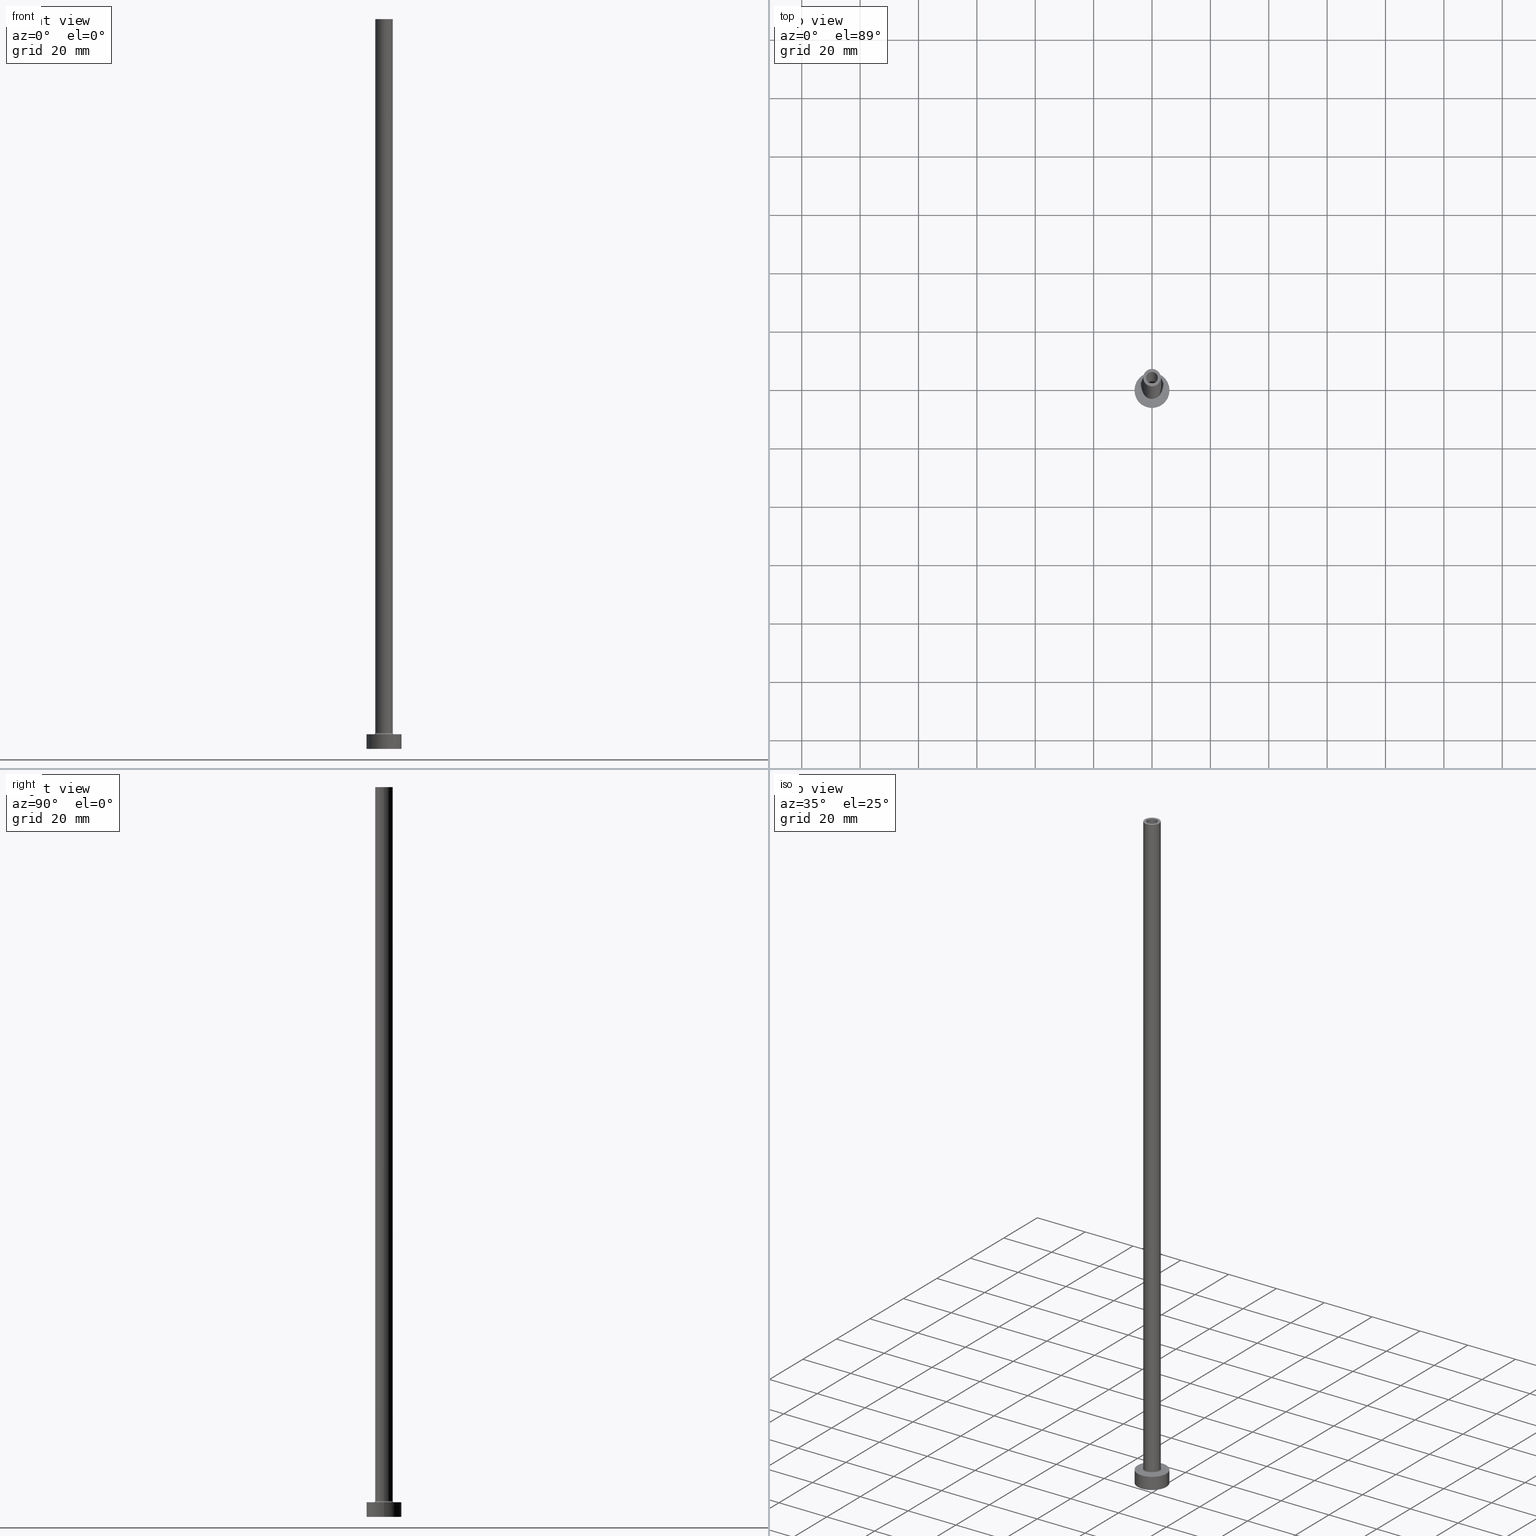
[diagram: canonical four-view strip — front | top / right | iso, engineering-drawing reading convention]
A machine part, canonical four-view strip (front | top / right | iso — engineering-drawing reading convention). The complete STEP part file that produces these views, byte-faithful:
ISO-10303-21;
HEADER;
FILE_DESCRIPTION (( 'STEP AP203' ),
    '1' );
FILE_NAME ('b119.STEP',
    '2023-02-13T11:08:23',
    ( '' ),
    ( '' ),
    'SwSTEP 2.0',
    'SolidWorks 2019',
    '' );
FILE_SCHEMA (( 'CONFIG_CONTROL_DESIGN' ));
ENDSEC;

DATA;
#1 = DIRECTION ( 'NONE',  ( 0.000000000000000000, 0.000000000000000000, 1.000000000000000000 ) ) ;
#2 = DIRECTION ( 'NONE',  ( -1.000000000000000000, 0.000000000000000000, 0.000000000000000000 ) ) ;
#3 = AXIS2_PLACEMENT_3D ( 'NONE', #157, #21, #211 ) ;
#4 = CARTESIAN_POINT ( 'NONE',  ( 0.000000000000000000, 0.000000000000000000, 5.000000000000000000 ) ) ;
#5 = AXIS2_PLACEMENT_3D ( 'NONE', #72, #300, #69 ) ;
#6 = AXIS2_PLACEMENT_3D ( 'NONE', #163, #56, #159 ) ;
#7 = DIRECTION ( 'NONE',  ( -0.000000000000000000, -0.000000000000000000, -1.000000000000000000 ) ) ;
#8 = VERTEX_POINT ( 'NONE', #206 ) ;
#9 = EDGE_CURVE ( 'NONE', #106, #417, #246, .T. ) ;
#10 = ORIENTED_EDGE ( 'NONE', *, *, #348, .T. ) ;
#11 = CARTESIAN_POINT ( 'NONE',  ( 0.000000000000000000, 0.000000000000000000, 205.0000000000000284 ) ) ;
#12 = CC_DESIGN_DATE_AND_TIME_ASSIGNMENT ( #71, #366, ( #155 ) ) ;
#13 = VECTOR ( 'NONE', #105, 1000.000000000000000 ) ;
#14 = DIRECTION ( 'NONE',  ( -0.000000000000000000, -0.000000000000000000, -1.000000000000000000 ) ) ;
#15 = PRODUCT_DEFINITION_FORMATION_WITH_SPECIFIED_SOURCE ( 'LIBOVOLN�', '', #370, .NOT_KNOWN. ) ;
#16 = ORIENTED_EDGE ( 'NONE', *, *, #184, .F. ) ;
#17 = CARTESIAN_POINT ( 'NONE',  ( -2.149999999999999911, 0.000000000000000000, 211.0811183182043180 ) ) ;
#18 = AXIS2_PLACEMENT_3D ( 'NONE', #293, #329, #179 ) ;
#19 = FACE_OUTER_BOUND ( 'NONE', #397, .T. ) ;
#20 = ADVANCED_FACE ( 'NONE', ( #420, #19 ), #446, .T. ) ;
#21 = DIRECTION ( 'NONE',  ( 0.000000000000000000, 0.000000000000000000, 1.000000000000000000 ) ) ;
#22 = CC_DESIGN_APPROVAL ( #52, ( #433 ) ) ;
#23 = UNCERTAINTY_MEASURE_WITH_UNIT (LENGTH_MEASURE( 1.000000000000000082E-05 ), #295, 'distance_accuracy_value', 'NONE');
#24 = EDGE_LOOP ( 'NONE', ( #59, #253, #357, #180 ) ) ;
#25 = CARTESIAN_POINT ( 'NONE',  ( 0.000000000000000000, 0.000000000000000000, 5.000000000000000000 ) ) ;
#26 = CIRCLE ( 'NONE', #84, 3.000000000000000444 ) ;
#27 = EDGE_CURVE ( 'NONE', #197, #106, #287, .T. ) ;
#28 = LINE ( 'NONE', #457, #13 ) ;
#29 = CARTESIAN_POINT ( 'NONE',  ( 0.000000000000000000, 0.000000000000000000, 205.0000000000000284 ) ) ;
#30 = AXIS2_PLACEMENT_3D ( 'NONE', #448, #96, #388 ) ;
#31 = DIRECTION ( 'NONE',  ( 0.000000000000000000, 0.000000000000000000, 1.000000000000000000 ) ) ;
#32 = CARTESIAN_POINT ( 'NONE',  ( 0.000000000000000000, 0.000000000000000000, 250.0000000000000000 ) ) ;
#33 = AXIS2_PLACEMENT_3D ( 'NONE', #86, #241, #344 ) ;
#34 = AXIS2_PLACEMENT_3D ( 'NONE', #220, #31, #358 ) ;
#35 = DIRECTION ( 'NONE',  ( 1.000000000000000000, 0.000000000000000000, 0.000000000000000000 ) ) ;
#36 = MANIFOLD_SOLID_BREP ( 'Odebrat vysunut�m4', #243 ) ;
#37 = DIRECTION ( 'NONE',  ( 0.000000000000000000, 0.000000000000000000, -1.000000000000000000 ) ) ;
#38 = EDGE_CURVE ( 'NONE', #8, #88, #345, .T. ) ;
#39 = CIRCLE ( 'NONE', #30, 2.149999999999999911 ) ;
#40 = ORIENTED_EDGE ( 'NONE', *, *, #460, .T. ) ;
#41 = DIRECTION ( 'NONE',  ( -0.000000000000000000, -0.000000000000000000, -1.000000000000000000 ) ) ;
#42 = DIRECTION ( 'NONE',  ( -0.000000000000000000, -0.000000000000000000, -1.000000000000000000 ) ) ;
#43 = VERTEX_POINT ( 'NONE', #315 ) ;
#44 = FACE_BOUND ( 'NONE', #352, .T. ) ;
#45 = DIRECTION ( 'NONE',  ( 1.000000000000000000, 0.000000000000000000, 0.000000000000000000 ) ) ;
#46 = ORIENTED_EDGE ( 'NONE', *, *, #265, .T. ) ;
#47 = AXIS2_PLACEMENT_3D ( 'NONE', #296, #187, #142 ) ;
#48 = CARTESIAN_POINT ( 'NONE',  ( 0.000000000000000000, 0.000000000000000000, 5.000000000000000000 ) ) ;
#49 = ORIENTED_EDGE ( 'NONE', *, *, #90, .T. ) ;
#50 = CALENDAR_DATE ( 2023, 13, 2 ) ;
#51 = ORIENTED_EDGE ( 'NONE', *, *, #288, .T. ) ;
#52 = APPROVAL ( #124, 'NEUR�EN�' ) ;
#53 = EDGE_LOOP ( 'NONE', ( #166, #318 ) ) ;
#54 = CARTESIAN_POINT ( 'NONE',  ( 0.000000000000000000, 0.000000000000000000, 250.0000000000000000 ) ) ;
#55 = DIRECTION ( 'NONE',  ( 1.000000000000000000, 0.000000000000000000, 0.000000000000000000 ) ) ;
#56 = DIRECTION ( 'NONE',  ( 0.000000000000000000, 0.000000000000000000, 1.000000000000000000 ) ) ;
#57 = APPROVAL_ROLE ( '' ) ;
#58 = APPROVAL ( #395, 'NEUR�EN�' ) ;
#59 = ORIENTED_EDGE ( 'NONE', *, *, #27, .T. ) ;
#60 = ORIENTED_EDGE ( 'NONE', *, *, #90, .F. ) ;
#61 = CARTESIAN_POINT ( 'NONE',  ( 0.000000000000000000, 0.000000000000000000, 250.0000000000000000 ) ) ;
#62 = VERTEX_POINT ( 'NONE', #286 ) ;
#63 = MECHANICAL_CONTEXT ( 'NONE', #252, 'mechanical' ) ;
#64 = FACE_OUTER_BOUND ( 'NONE', #392, .T. ) ;
#65 = CYLINDRICAL_SURFACE ( 'NONE', #18, 6.000000000000000888 ) ;
#66 = AXIS2_PLACEMENT_3D ( 'NONE', #441, #41, #412 ) ;
#67 = CC_DESIGN_APPROVAL ( #398, ( #15 ) ) ;
#68 = PLANE ( 'NONE',  #421 ) ;
#69 = DIRECTION ( 'NONE',  ( 1.000000000000000000, 0.000000000000000000, 0.000000000000000000 ) ) ;
#70 = EDGE_LOOP ( 'NONE', ( #109, #171, #10, #74 ) ) ;
#71 = DATE_AND_TIME ( #269, #75 ) ;
#72 = CARTESIAN_POINT ( 'NONE',  ( 0.000000000000000000, 0.000000000000000000, 0.000000000000000000 ) ) ;
#73 = EDGE_LOOP ( 'NONE', ( #371, #394, #409, #426 ) ) ;
#74 = ORIENTED_EDGE ( 'NONE', *, *, #85, .T. ) ;
#75 = LOCAL_TIME ( 12, 8, 23.00000000000000000, #186 ) ;
#76 = DIRECTION ( 'NONE',  ( 0.000000000000000000, 0.000000000000000000, 1.000000000000000000 ) ) ;
#77 = EDGE_LOOP ( 'NONE', ( #46, #49 ) ) ;
#78 = EDGE_CURVE ( 'NONE', #205, #62, #396, .T. ) ;
#79 = CARTESIAN_POINT ( 'NONE',  ( 0.000000000000000000, 0.000000000000000000, 5.500000000000005329 ) ) ;
#80 = VERTEX_POINT ( 'NONE', #169 ) ;
#81 = FACE_OUTER_BOUND ( 'NONE', #257, .T. ) ;
#82 = CC_DESIGN_PERSON_AND_ORGANIZATION_ASSIGNMENT ( #353, #283, ( #433 ) ) ;
#83 = AXIS2_PLACEMENT_3D ( 'NONE', #11, #278, #410 ) ;
#84 = AXIS2_PLACEMENT_3D ( 'NONE', #79, #373, #45 ) ;
#85 = EDGE_CURVE ( 'NONE', #383, #417, #39, .T. ) ;
#86 = CARTESIAN_POINT ( 'NONE',  ( 0.000000000000000000, 0.000000000000000000, 211.0811183182043180 ) ) ;
#87 = CARTESIAN_POINT ( 'NONE',  ( 0.000000000000000000, 0.000000000000000000, 205.0000000000000284 ) ) ;
#88 = VERTEX_POINT ( 'NONE', #214 ) ;
#89 = DIRECTION ( 'NONE',  ( 1.000000000000000000, 0.000000000000000000, 0.000000000000000000 ) ) ;
#90 = EDGE_CURVE ( 'NONE', #103, #290, #418, .T. ) ;
#91 = ORIENTED_EDGE ( 'NONE', *, *, #277, .F. ) ;
#92 = DIRECTION ( 'NONE',  ( -0.000000000000000000, -0.000000000000000000, -1.000000000000000000 ) ) ;
#93 = EDGE_CURVE ( 'NONE', #88, #323, #199, .T. ) ;
#94 = COORDINATED_UNIVERSAL_TIME_OFFSET ( 1, 0, .AHEAD. ) ;
#95 = APPROVAL_PERSON_ORGANIZATION ( #240, #398, #57 ) ;
#96 = DIRECTION ( 'NONE',  ( -0.000000000000000000, -0.000000000000000000, -1.000000000000000000 ) ) ;
#97 = ORIENTED_EDGE ( 'NONE', *, *, #334, .F. ) ;
#98 = VECTOR ( 'NONE', #381, 1000.000000000000000 ) ;
#99 = DIRECTION ( 'NONE',  ( -1.000000000000000000, 1.224646799147354440E-16, 0.000000000000000000 ) ) ;
#100 = CYLINDRICAL_SURFACE ( 'NONE', #289, 2.149999999999999911 ) ;
#101 = VECTOR ( 'NONE', #341, 1000.000000000000000 ) ;
#102 = EDGE_CURVE ( 'NONE', #80, #323, #227, .T. ) ;
#103 = VERTEX_POINT ( 'NONE', #393 ) ;
#104 = PERSON_AND_ORGANIZATION ( #143, #225 ) ;
#105 = DIRECTION ( 'NONE',  ( -0.000000000000000000, -0.000000000000000000, -1.000000000000000000 ) ) ;
#106 = VERTEX_POINT ( 'NONE', #133 ) ;
#107 = APPROVAL_DATE_TIME ( #138, #58 ) ;
#108 = FACE_OUTER_BOUND ( 'NONE', #407, .T. ) ;
#109 = ORIENTED_EDGE ( 'NONE', *, *, #9, .F. ) ;
#110 = DIRECTION ( 'NONE',  ( 1.000000000000000000, 0.000000000000000000, 0.000000000000000000 ) ) ;
#111 = VECTOR ( 'NONE', #42, 1000.000000000000000 ) ;
#112 = DIRECTION ( 'NONE',  ( 0.000000000000000000, 0.000000000000000000, 1.000000000000000000 ) ) ;
#113 = ORIENTED_EDGE ( 'NONE', *, *, #277, .T. ) ;
#114 = ADVANCED_FACE ( 'NONE', ( #292 ), #65, .T. ) ;
#115 = CARTESIAN_POINT ( 'NONE',  ( 0.000000000000000000, 0.000000000000000000, 250.0000000000000000 ) ) ;
#116 = ORIENTED_EDGE ( 'NONE', *, *, #78, .F. ) ;
#117 = DIRECTION ( 'NONE',  ( 0.000000000000000000, 0.000000000000000000, 1.000000000000000000 ) ) ;
#118 = APPLICATION_CONTEXT ( 'configuration controlled 3d designs of mechanical parts and assemblies' ) ;
#119 = DIRECTION ( 'NONE',  ( 0.000000000000000000, 0.000000000000000000, -1.000000000000000000 ) ) ;
#120 = ADVANCED_FACE ( 'NONE', ( #425 ), #137, .F. ) ;
#121 = DIRECTION ( 'NONE',  ( 1.000000000000000000, 0.000000000000000000, 0.000000000000000000 ) ) ;
#122 = AXIS2_PLACEMENT_3D ( 'NONE', #115, #200, #339 ) ;
#123 = CC_DESIGN_SECURITY_CLASSIFICATION ( #433, ( #15 ) ) ;
#124 = APPROVAL_STATUS ( 'not_yet_approved' ) ;
#125 = FACE_OUTER_BOUND ( 'NONE', #70, .T. ) ;
#126 = DIRECTION ( 'NONE',  ( 1.000000000000000000, 0.000000000000000000, -0.000000000000000000 ) ) ;
#127 = DATE_AND_TIME ( #254, #185 ) ;
#128 = AXIS2_PLACEMENT_3D ( 'NONE', #32, #139, #2 ) ;
#129 = ORIENTED_EDGE ( 'NONE', *, *, #331, .T. ) ;
#130 = CYLINDRICAL_SURFACE ( 'NONE', #33, 2.149999999999999911 ) ;
#131 = ORIENTED_EDGE ( 'NONE', *, *, #102, .F. ) ;
#132 = CC_DESIGN_DATE_AND_TIME_ASSIGNMENT ( #156, #310, ( #433 ) ) ;
#133 = CARTESIAN_POINT ( 'NONE',  ( 2.149999999999999911, 2.632990618166809235E-16, 205.0000000000000284 ) ) ;
#134 = ORIENTED_EDGE ( 'NONE', *, *, #400, .F. ) ;
#135 = CARTESIAN_POINT ( 'NONE',  ( 6.000000000000000888, 7.347880794884120722E-16, 0.000000000000000000 ) ) ;
#136 = AXIS2_PLACEMENT_3D ( 'NONE', #230, #231, #196 ) ;
#137 = CYLINDRICAL_SURFACE ( 'NONE', #229, 2.000000000000000000 ) ;
#138 = DATE_AND_TIME ( #458, #195 ) ;
#139 = DIRECTION ( 'NONE',  ( -0.000000000000000000, -0.000000000000000000, -1.000000000000000000 ) ) ;
#140 = VERTEX_POINT ( 'NONE', #322 ) ;
#141 = CARTESIAN_POINT ( 'NONE',  ( 0.000000000000000000, 0.000000000000000000, 5.000000000000000000 ) ) ;
#142 = DIRECTION ( 'NONE',  ( 1.000000000000000000, 0.000000000000000000, 0.000000000000000000 ) ) ;
#143 = PERSON ( 'NEUR�EN�', 'NEUR�EN�', 'NEUR�EN�', ('NEUR�EN�'), ('NEUR�EN�'), ('NEUR�EN�') ) ;
#144 = ORIENTED_EDGE ( 'NONE', *, *, #93, .T. ) ;
#145 =( NAMED_UNIT ( * ) SI_UNIT ( $, .STERADIAN. ) SOLID_ANGLE_UNIT ( ) );
#146 = DIRECTION ( 'NONE',  ( 0.000000000000000000, 0.000000000000000000, 1.000000000000000000 ) ) ;
#147 = AXIS2_PLACEMENT_3D ( 'NONE', #405, #363, #35 ) ;
#148 = VERTEX_POINT ( 'NONE', #361 ) ;
#149 = FACE_OUTER_BOUND ( 'NONE', #161, .T. ) ;
#150 = ORIENTED_EDGE ( 'NONE', *, *, #342, .T. ) ;
#151 = LINE ( 'NONE', #372, #172 ) ;
#152 = CARTESIAN_POINT ( 'NONE',  ( 3.500000000000000444, 0.000000000000000000, 5.500000000000005329 ) ) ;
#153 = CARTESIAN_POINT ( 'NONE',  ( 0.000000000000000000, 0.000000000000000000, 205.0000000000000284 ) ) ;
#154 = VECTOR ( 'NONE', #37, 1000.000000000000000 ) ;
#155 = PRODUCT_DEFINITION ( 'NEZN�M�', '', #15, #351 ) ;
#156 = DATE_AND_TIME ( #50, #239 ) ;
#157 = CARTESIAN_POINT ( 'NONE',  ( 0.000000000000000000, 0.000000000000000000, 250.0000000000000000 ) ) ;
#158 = AXIS2_PLACEMENT_3D ( 'NONE', #302, #14, #89 ) ;
#159 = DIRECTION ( 'NONE',  ( 1.000000000000000000, 0.000000000000000000, 0.000000000000000000 ) ) ;
#160 = CARTESIAN_POINT ( 'NONE',  ( -2.000000000000000000, 0.000000000000000000, 250.0000000000000000 ) ) ;
#161 = EDGE_LOOP ( 'NONE', ( #212, #232, #367, #263 ) ) ;
#162 = ADVANCED_FACE ( 'NONE', ( #270 ), #455, .F. ) ;
#163 = CARTESIAN_POINT ( 'NONE',  ( 0.000000000000000000, 0.000000000000000000, 5.500000000000005329 ) ) ;
#164 = APPROVAL_STATUS ( 'not_yet_approved' ) ;
#165 = DIRECTION ( 'NONE',  ( 1.000000000000000000, 0.000000000000000000, 0.000000000000000000 ) ) ;
#166 = ORIENTED_EDGE ( 'NONE', *, *, #27, .F. ) ;
#167 = ADVANCED_BREP_SHAPE_REPRESENTATION ( 'b119', ( #36, #34 ), #218 ) ;
#168 = EDGE_CURVE ( 'NONE', #8, #80, #247, .T. ) ;
#169 = CARTESIAN_POINT ( 'NONE',  ( 2.000000000000000000, 2.449293598294705921E-16, 250.0000000000000000 ) ) ;
#170 = CC_DESIGN_PERSON_AND_ORGANIZATION_ASSIGNMENT ( #349, #245, ( #15 ) ) ;
#171 = ORIENTED_EDGE ( 'NONE', *, *, #279, .T. ) ;
#172 = VECTOR ( 'NONE', #7, 1000.000000000000000 ) ;
#173 = DIRECTION ( 'NONE',  ( -0.000000000000000000, -0.000000000000000000, -1.000000000000000000 ) ) ;
#174 = CIRCLE ( 'NONE', #325, 0.4999999999999995559 ) ;
#175 = DIRECTION ( 'NONE',  ( 1.000000000000000000, 0.000000000000000000, -0.000000000000000000 ) ) ;
#176 = CARTESIAN_POINT ( 'NONE',  ( -2.149999999999999911, 0.000000000000000000, 205.0000000000000284 ) ) ;
#177 = ADVANCED_FACE ( 'NONE', ( #108 ), #391, .F. ) ;
#178 = PERSON_AND_ORGANIZATION ( #143, #225 ) ;
#179 = DIRECTION ( 'NONE',  ( -1.000000000000000000, 0.000000000000000000, 0.000000000000000000 ) ) ;
#180 = ORIENTED_EDGE ( 'NONE', *, *, #348, .F. ) ;
#181 = CARTESIAN_POINT ( 'NONE',  ( -6.000000000000000888, 0.000000000000000000, 0.000000000000000000 ) ) ;
#182 = EDGE_CURVE ( 'NONE', #447, #453, #299, .T. ) ;
#183 = DIRECTION ( 'NONE',  ( -1.000000000000000000, 0.000000000000000000, 0.000000000000000000 ) ) ;
#184 = EDGE_CURVE ( 'NONE', #205, #43, #28, .T. ) ;
#185 = LOCAL_TIME ( 12, 8, 23.00000000000000000, #377 ) ;
#186 = COORDINATED_UNIVERSAL_TIME_OFFSET ( 1, 0, .AHEAD. ) ;
#187 = DIRECTION ( 'NONE',  ( 0.000000000000000000, 0.000000000000000000, 1.000000000000000000 ) ) ;
#188 = CC_DESIGN_PERSON_AND_ORGANIZATION_ASSIGNMENT ( #178, #321, ( #370 ) ) ;
#189 = DIRECTION ( 'NONE',  ( -0.000000000000000000, -0.000000000000000000, -1.000000000000000000 ) ) ;
#190 = DIRECTION ( 'NONE',  ( 0.000000000000000000, 0.000000000000000000, 1.000000000000000000 ) ) ;
#191 = VERTEX_POINT ( 'NONE', #260 ) ;
#192 = DIRECTION ( 'NONE',  ( 0.000000000000000000, 0.000000000000000000, 1.000000000000000000 ) ) ;
#193 = CIRCLE ( 'NONE', #136, 6.000000000000000888 ) ;
#194 = ORIENTED_EDGE ( 'NONE', *, *, #336, .T. ) ;
#195 = LOCAL_TIME ( 12, 8, 23.00000000000000000, #324 ) ;
#196 = DIRECTION ( 'NONE',  ( 1.000000000000000000, 0.000000000000000000, 0.000000000000000000 ) ) ;
#197 = VERTEX_POINT ( 'NONE', #176 ) ;
#198 = CARTESIAN_POINT ( 'NONE',  ( 0.000000000000000000, 0.000000000000000000, 250.0000000000000000 ) ) ;
#199 = CIRCLE ( 'NONE', #309, 2.000000000000000000 ) ;
#200 = DIRECTION ( 'NONE',  ( 0.000000000000000000, 0.000000000000000000, -1.000000000000000000 ) ) ;
#201 = AXIS2_PLACEMENT_3D ( 'NONE', #198, #408, #273 ) ;
#202 = EDGE_LOOP ( 'NONE', ( #236, #40, #456, #97 ) ) ;
#203 = CARTESIAN_POINT ( 'NONE',  ( 0.000000000000000000, 0.000000000000000000, 205.0000000000000284 ) ) ;
#204 = EDGE_LOOP ( 'NONE', ( #134, #91, #429, #431 ) ) ;
#205 = VERTEX_POINT ( 'NONE', #320 ) ;
#206 = CARTESIAN_POINT ( 'NONE',  ( -2.000000000000000000, 0.000000000000000000, 250.0000000000000000 ) ) ;
#207 = AXIS2_PLACEMENT_3D ( 'NONE', #203, #117, #307 ) ;
#208 = ADVANCED_FACE ( 'NONE', ( #423 ), #100, .F. ) ;
#209 = PLANE ( 'NONE',  #376 ) ;
#210 = DIRECTION ( 'NONE',  ( 0.000000000000000000, 0.000000000000000000, 1.000000000000000000 ) ) ;
#211 = DIRECTION ( 'NONE',  ( 1.000000000000000000, 0.000000000000000000, -0.000000000000000000 ) ) ;
#212 = ORIENTED_EDGE ( 'NONE', *, *, #168, .T. ) ;
#213 = PERSON_AND_ORGANIZATION_ROLE ( 'creator' ) ;
#214 = CARTESIAN_POINT ( 'NONE',  ( -2.000000000000000000, 0.000000000000000000, 205.0000000000000284 ) ) ;
#215 = CIRCLE ( 'NONE', #47, 6.000000000000000888 ) ;
#216 = FACE_OUTER_BOUND ( 'NONE', #271, .T. ) ;
#217 = CARTESIAN_POINT ( 'NONE',  ( 2.149999999999999911, 2.632990618166809235E-16, 211.0811183182043180 ) ) ;
#218 =( GEOMETRIC_REPRESENTATION_CONTEXT ( 3 ) GLOBAL_UNCERTAINTY_ASSIGNED_CONTEXT ( ( #23 ) ) GLOBAL_UNIT_ASSIGNED_CONTEXT ( ( #295, #226, #145 ) ) REPRESENTATION_CONTEXT ( 'NONE', 'WORKASPACE' ) );
#219 = EDGE_LOOP ( 'NONE', ( #354, #268 ) ) ;
#220 = CARTESIAN_POINT ( 'NONE',  ( 0.000000000000000000, 0.000000000000000000, 0.000000000000000000 ) ) ;
#221 = DIRECTION ( 'NONE',  ( 0.000000000000000000, 0.000000000000000000, -1.000000000000000000 ) ) ;
#222 = PRODUCT_DEFINITION_SHAPE ( 'NONE', 'NONE',  #155 ) ;
#223 = APPROVAL_ROLE ( '' ) ;
#224 = CYLINDRICAL_SURFACE ( 'NONE', #128, 3.000000000000000444 ) ;
#225 = ORGANIZATION ( 'NEUR�EN�', 'NEUR�EN�', '' ) ;
#226 =( NAMED_UNIT ( * ) PLANE_ANGLE_UNIT ( ) SI_UNIT ( $, .RADIAN. ) );
#227 = LINE ( 'NONE', #401, #154 ) ;
#228 = ORIENTED_EDGE ( 'NONE', *, *, #338, .T. ) ;
#229 = AXIS2_PLACEMENT_3D ( 'NONE', #61, #221, #183 ) ;
#230 = CARTESIAN_POINT ( 'NONE',  ( 0.000000000000000000, 0.000000000000000000, 5.000000000000000000 ) ) ;
#231 = DIRECTION ( 'NONE',  ( 0.000000000000000000, 0.000000000000000000, 1.000000000000000000 ) ) ;
#232 = ORIENTED_EDGE ( 'NONE', *, *, #102, .T. ) ;
#233 = APPROVAL_PERSON_ORGANIZATION ( #104, #58, #223 ) ;
#234 = DIRECTION ( 'NONE',  ( -0.000000000000000000, -0.000000000000000000, -1.000000000000000000 ) ) ;
#235 = DIRECTION ( 'NONE',  ( 0.000000000000000000, 0.000000000000000000, 1.000000000000000000 ) ) ;
#236 = ORIENTED_EDGE ( 'NONE', *, *, #342, .F. ) ;
#237 = DIRECTION ( 'NONE',  ( 0.000000000000000000, -1.000000000000000000, 0.000000000000000000 ) ) ;
#238 = AXIS2_PLACEMENT_3D ( 'NONE', #48, #192, #121 ) ;
#239 = LOCAL_TIME ( 12, 8, 23.00000000000000000, #94 ) ;
#240 = PERSON_AND_ORGANIZATION ( #143, #225 ) ;
#241 = DIRECTION ( 'NONE',  ( 0.000000000000000000, 0.000000000000000000, -1.000000000000000000 ) ) ;
#242 = DATE_AND_TIME ( #251, #333 ) ;
#243 = CLOSED_SHELL ( 'NONE', ( #350, #208, #162, #244, #442, #114, #438, #427, #291, #20, #177, #390, #280, #120 ) ) ;
#244 = ADVANCED_FACE ( 'NONE', ( #64 ), #224, .T. ) ;
#245 = PERSON_AND_ORGANIZATION_ROLE ( 'design_supplier' ) ;
#246 = LINE ( 'NONE', #217, #98 ) ;
#247 = CIRCLE ( 'NONE', #346, 2.000000000000000000 ) ;
#248 = ORIENTED_EDGE ( 'NONE', *, *, #78, .T. ) ;
#249 = VECTOR ( 'NONE', #92, 1000.000000000000000 ) ;
#250 = CARTESIAN_POINT ( 'NONE',  ( 0.000000000000000000, 0.000000000000000000, 0.000000000000000000 ) ) ;
#251 = CALENDAR_DATE ( 2023, 13, 2 ) ;
#252 = APPLICATION_CONTEXT ( 'configuration controlled 3d designs of mechanical parts and assemblies' ) ;
#253 = ORIENTED_EDGE ( 'NONE', *, *, #9, .T. ) ;
#254 = CALENDAR_DATE ( 2023, 13, 2 ) ;
#255 = AXIS2_PLACEMENT_3D ( 'NONE', #54, #210, #55 ) ;
#256 = EDGE_LOOP ( 'NONE', ( #131, #434, #364, #294 ) ) ;
#257 = EDGE_LOOP ( 'NONE', ( #385, #116, #451, #150 ) ) ;
#258 = CYLINDRICAL_SURFACE ( 'NONE', #355, 6.000000000000000888 ) ;
#259 = APPLICATION_PROTOCOL_DEFINITION ( 'international standard', 'config_control_design', 1994, #252 ) ;
#260 = CARTESIAN_POINT ( 'NONE',  ( 3.000000000000000444, 3.673940397442060361E-16, 5.500000000000005329 ) ) ;
#261 = EDGE_CURVE ( 'NONE', #453, #447, #215, .T. ) ;
#262 = DIRECTION ( 'NONE',  ( 0.000000000000000000, 0.000000000000000000, -1.000000000000000000 ) ) ;
#263 = ORIENTED_EDGE ( 'NONE', *, *, #38, .F. ) ;
#264 = AXIS2_PLACEMENT_3D ( 'NONE', #152, #237, #119 ) ;
#265 = EDGE_CURVE ( 'NONE', #290, #103, #414, .T. ) ;
#266 = DIRECTION ( 'NONE',  ( 1.000000000000000000, 0.000000000000000000, 0.000000000000000000 ) ) ;
#267 = APPROVAL_PERSON_ORGANIZATION ( #443, #52, #380 ) ;
#268 = ORIENTED_EDGE ( 'NONE', *, *, #261, .F. ) ;
#269 = CALENDAR_DATE ( 2023, 13, 2 ) ;
#270 = FACE_OUTER_BOUND ( 'NONE', #202, .T. ) ;
#271 = EDGE_LOOP ( 'NONE', ( #113, #228 ) ) ;
#272 = DIRECTION ( 'NONE',  ( 1.000000000000000000, 0.000000000000000000, -0.000000000000000000 ) ) ;
#273 = DIRECTION ( 'NONE',  ( 1.000000000000000000, 0.000000000000000000, 0.000000000000000000 ) ) ;
#274 = AXIS2_PLACEMENT_3D ( 'NONE', #153, #235, #272 ) ;
#275 = ORIENTED_EDGE ( 'NONE', *, *, #334, .T. ) ;
#276 = CC_DESIGN_PERSON_AND_ORGANIZATION_ASSIGNMENT ( #399, #359, ( #155 ) ) ;
#277 = EDGE_CURVE ( 'NONE', #148, #140, #193, .T. ) ;
#278 = DIRECTION ( 'NONE',  ( 0.000000000000000000, 0.000000000000000000, 1.000000000000000000 ) ) ;
#279 = EDGE_CURVE ( 'NONE', #106, #197, #312, .T. ) ;
#280 = ADVANCED_FACE ( 'NONE', ( #44, #305 ), #369, .F. ) ;
#281 = CYLINDRICAL_SURFACE ( 'NONE', #122, 2.000000000000000000 ) ;
#282 = AXIS2_PLACEMENT_3D ( 'NONE', #337, #234, #304 ) ;
#283 = PERSON_AND_ORGANIZATION_ROLE ( 'classification_officer' ) ;
#284 = FACE_OUTER_BOUND ( 'NONE', #219, .T. ) ;
#285 = SHAPE_DEFINITION_REPRESENTATION ( #222, #167 ) ;
#286 = CARTESIAN_POINT ( 'NONE',  ( 3.000000000000000444, 3.673940397442060361E-16, 250.0000000000000000 ) ) ;
#287 = CIRCLE ( 'NONE', #389, 2.149999999999999911 ) ;
#288 = EDGE_CURVE ( 'NONE', #62, #191, #151, .T. ) ;
#289 = AXIS2_PLACEMENT_3D ( 'NONE', #459, #262, #326 ) ;
#290 = VERTEX_POINT ( 'NONE', #335 ) ;
#291 = ADVANCED_FACE ( 'NONE', ( #81 ), #413, .T. ) ;
#292 = FACE_OUTER_BOUND ( 'NONE', #204, .T. ) ;
#293 = CARTESIAN_POINT ( 'NONE',  ( 0.000000000000000000, 0.000000000000000000, 5.000000000000000000 ) ) ;
#294 = ORIENTED_EDGE ( 'NONE', *, *, #336, .F. ) ;
#295 =( LENGTH_UNIT ( ) NAMED_UNIT ( * ) SI_UNIT ( .MILLI., .METRE. ) );
#296 = CARTESIAN_POINT ( 'NONE',  ( 0.000000000000000000, 0.000000000000000000, 0.000000000000000000 ) ) ;
#297 = CARTESIAN_POINT ( 'NONE',  ( 0.000000000000000000, 0.000000000000000000, 250.0000000000000000 ) ) ;
#298 = ORIENTED_EDGE ( 'NONE', *, *, #360, .F. ) ;
#299 = CIRCLE ( 'NONE', #5, 6.000000000000000888 ) ;
#300 = DIRECTION ( 'NONE',  ( 0.000000000000000000, 0.000000000000000000, 1.000000000000000000 ) ) ;
#301 = ORIENTED_EDGE ( 'NONE', *, *, #460, .F. ) ;
#302 = CARTESIAN_POINT ( 'NONE',  ( 0.000000000000000000, 0.000000000000000000, 0.000000000000000000 ) ) ;
#303 = VECTOR ( 'NONE', #444, 1000.000000000000000 ) ;
#304 = DIRECTION ( 'NONE',  ( 1.000000000000000000, 0.000000000000000000, 0.000000000000000000 ) ) ;
#305 = FACE_OUTER_BOUND ( 'NONE', #53, .T. ) ;
#306 = CIRCLE ( 'NONE', #340, 2.000000000000000000 ) ;
#307 = DIRECTION ( 'NONE',  ( 1.000000000000000000, 0.000000000000000000, 0.000000000000000000 ) ) ;
#308 = CARTESIAN_POINT ( 'NONE',  ( 0.000000000000000000, 0.000000000000000000, 250.0000000000000000 ) ) ;
#309 = AXIS2_PLACEMENT_3D ( 'NONE', #29, #112, #454 ) ;
#310 = DATE_TIME_ROLE ( 'classification_date' ) ;
#311 = DIRECTION ( 'NONE',  ( 0.000000000000000000, 0.000000000000000000, 1.000000000000000000 ) ) ;
#312 = CIRCLE ( 'NONE', #207, 2.149999999999999911 ) ;
#313 = CC_DESIGN_APPROVAL ( #58, ( #155 ) ) ;
#314 = CARTESIAN_POINT ( 'NONE',  ( 2.149999999999999911, 2.632990618166809235E-16, 0.000000000000000000 ) ) ;
#315 = CARTESIAN_POINT ( 'NONE',  ( -3.000000000000000444, 0.000000000000000000, 5.500000000000005329 ) ) ;
#316 = EDGE_CURVE ( 'NONE', #148, #447, #437, .T. ) ;
#317 = EDGE_LOOP ( 'NONE', ( #330, #298 ) ) ;
#318 = ORIENTED_EDGE ( 'NONE', *, *, #279, .F. ) ;
#319 = ORIENTED_EDGE ( 'NONE', *, *, #327, .F. ) ;
#320 = CARTESIAN_POINT ( 'NONE',  ( -3.000000000000000444, 0.000000000000000000, 250.0000000000000000 ) ) ;
#321 = PERSON_AND_ORGANIZATION_ROLE ( 'design_owner' ) ;
#322 = CARTESIAN_POINT ( 'NONE',  ( 6.000000000000000888, 7.347880794884120722E-16, 5.000000000000000000 ) ) ;
#323 = VERTEX_POINT ( 'NONE', #439 ) ;
#324 = COORDINATED_UNIVERSAL_TIME_OFFSET ( 1, 0, .AHEAD. ) ;
#325 = AXIS2_PLACEMENT_3D ( 'NONE', #430, #362, #99 ) ;
#326 = DIRECTION ( 'NONE',  ( -1.000000000000000000, 0.000000000000000000, 0.000000000000000000 ) ) ;
#327 = EDGE_CURVE ( 'NONE', #80, #8, #306, .T. ) ;
#328 = ORIENTED_EDGE ( 'NONE', *, *, #168, .F. ) ;
#329 = DIRECTION ( 'NONE',  ( -0.000000000000000000, -0.000000000000000000, -1.000000000000000000 ) ) ;
#330 = ORIENTED_EDGE ( 'NONE', *, *, #85, .F. ) ;
#331 = EDGE_CURVE ( 'NONE', #62, #205, #403, .T. ) ;
#332 = DIRECTION ( 'NONE',  ( 1.000000000000000000, 0.000000000000000000, 0.000000000000000000 ) ) ;
#333 = LOCAL_TIME ( 12, 8, 23.00000000000000000, #416 ) ;
#334 = EDGE_CURVE ( 'NONE', #191, #290, #449, .T. ) ;
#335 = CARTESIAN_POINT ( 'NONE',  ( 3.500000000000000444, 0.000000000000000000, 5.000000000000002665 ) ) ;
#336 = EDGE_CURVE ( 'NONE', #323, #88, #375, .T. ) ;
#337 = CARTESIAN_POINT ( 'NONE',  ( 0.000000000000000000, 0.000000000000000000, 5.000000000000000000 ) ) ;
#338 = EDGE_CURVE ( 'NONE', #140, #148, #432, .T. ) ;
#339 = DIRECTION ( 'NONE',  ( -1.000000000000000000, 0.000000000000000000, 0.000000000000000000 ) ) ;
#340 = AXIS2_PLACEMENT_3D ( 'NONE', #308, #76, #332 ) ;
#341 = DIRECTION ( 'NONE',  ( 0.000000000000000000, 0.000000000000000000, -1.000000000000000000 ) ) ;
#342 = EDGE_CURVE ( 'NONE', #43, #191, #26, .T. ) ;
#343 = PERSON_AND_ORGANIZATION ( #143, #225 ) ;
#344 = DIRECTION ( 'NONE',  ( -1.000000000000000000, 0.000000000000000000, 0.000000000000000000 ) ) ;
#345 = LINE ( 'NONE', #160, #303 ) ;
#346 = AXIS2_PLACEMENT_3D ( 'NONE', #297, #190, #266 ) ;
#347 = DIRECTION ( 'NONE',  ( 0.000000000000000000, 0.000000000000000000, 1.000000000000000000 ) ) ;
#348 = EDGE_CURVE ( 'NONE', #197, #383, #435, .T. ) ;
#349 = PERSON_AND_ORGANIZATION ( #143, #225 ) ;
#350 = ADVANCED_FACE ( 'NONE', ( #149 ), #281, .F. ) ;
#351 = DESIGN_CONTEXT ( 'detailed design', #118, 'design' ) ;
#352 = EDGE_LOOP ( 'NONE', ( #144, #194 ) ) ;
#353 = PERSON_AND_ORGANIZATION ( #143, #225 ) ;
#354 = ORIENTED_EDGE ( 'NONE', *, *, #182, .F. ) ;
#355 = AXIS2_PLACEMENT_3D ( 'NONE', #141, #189, #422 ) ;
#356 = CARTESIAN_POINT ( 'NONE',  ( 0.000000000000000000, 0.000000000000000000, 5.500000000000005329 ) ) ;
#357 = ORIENTED_EDGE ( 'NONE', *, *, #360, .T. ) ;
#358 = DIRECTION ( 'NONE',  ( 1.000000000000000000, 0.000000000000000000, 0.000000000000000000 ) ) ;
#359 = PERSON_AND_ORGANIZATION_ROLE ( 'creator' ) ;
#360 = EDGE_CURVE ( 'NONE', #417, #383, #368, .T. ) ;
#361 = CARTESIAN_POINT ( 'NONE',  ( -6.000000000000000888, 0.000000000000000000, 5.000000000000000000 ) ) ;
#362 = DIRECTION ( 'NONE',  ( 1.224646799147353207E-16, 1.000000000000000000, -0.000000000000000000 ) ) ;
#363 = DIRECTION ( 'NONE',  ( 0.000000000000000000, 0.000000000000000000, 1.000000000000000000 ) ) ;
#364 = ORIENTED_EDGE ( 'NONE', *, *, #38, .T. ) ;
#365 = AXIS2_PLACEMENT_3D ( 'NONE', #25, #173, #452 ) ;
#366 = DATE_TIME_ROLE ( 'creation_date' ) ;
#367 = ORIENTED_EDGE ( 'NONE', *, *, #93, .F. ) ;
#368 = CIRCLE ( 'NONE', #158, 2.149999999999999911 ) ;
#369 = PLANE ( 'NONE',  #274 ) ;
#370 = PRODUCT ( 'b119', 'b119', '', ( #63 ) ) ;
#371 = ORIENTED_EDGE ( 'NONE', *, *, #338, .F. ) ;
#372 = CARTESIAN_POINT ( 'NONE',  ( 3.000000000000000444, 3.673940397442060361E-16, 250.0000000000000000 ) ) ;
#373 = DIRECTION ( 'NONE',  ( 0.000000000000000000, 0.000000000000000000, 1.000000000000000000 ) ) ;
#374 = CARTESIAN_POINT ( 'NONE',  ( -6.000000000000000888, 0.000000000000000000, 5.000000000000000000 ) ) ;
#375 = CIRCLE ( 'NONE', #83, 2.000000000000000000 ) ;
#376 = AXIS2_PLACEMENT_3D ( 'NONE', #250, #347, #126 ) ;
#377 = COORDINATED_UNIVERSAL_TIME_OFFSET ( 1, 0, .AHEAD. ) ;
#378 = CARTESIAN_POINT ( 'NONE',  ( 6.000000000000000888, 7.347880794884120722E-16, 5.000000000000000000 ) ) ;
#379 = APPROVAL_DATE_TIME ( #242, #52 ) ;
#380 = APPROVAL_ROLE ( '' ) ;
#381 = DIRECTION ( 'NONE',  ( 0.000000000000000000, 0.000000000000000000, -1.000000000000000000 ) ) ;
#382 = AXIS2_PLACEMENT_3D ( 'NONE', #356, #146, #110 ) ;
#383 = VERTEX_POINT ( 'NONE', #415 ) ;
#384 = FACE_BOUND ( 'NONE', #77, .T. ) ;
#385 = ORIENTED_EDGE ( 'NONE', *, *, #288, .F. ) ;
#386 = LINE ( 'NONE', #378, #249 ) ;
#387 = APPROVAL_DATE_TIME ( #127, #398 ) ;
#388 = DIRECTION ( 'NONE',  ( 1.000000000000000000, 0.000000000000000000, 0.000000000000000000 ) ) ;
#389 = AXIS2_PLACEMENT_3D ( 'NONE', #87, #311, #165 ) ;
#390 = ADVANCED_FACE ( 'NONE', ( #125 ), #130, .F. ) ;
#391 = TOROIDAL_SURFACE ( 'NONE', #382, 3.500000000000000444, 0.5000000000000000000 ) ;
#392 = EDGE_LOOP ( 'NONE', ( #406, #51, #402, #16 ) ) ;
#393 = CARTESIAN_POINT ( 'NONE',  ( -3.500000000000000444, 4.286263797015737088E-16, 5.000000000000002665 ) ) ;
#394 = ORIENTED_EDGE ( 'NONE', *, *, #400, .T. ) ;
#395 = APPROVAL_STATUS ( 'not_yet_approved' ) ;
#396 = CIRCLE ( 'NONE', #255, 3.000000000000000444 ) ;
#397 = EDGE_LOOP ( 'NONE', ( #248, #129 ) ) ;
#398 = APPROVAL ( #164, 'NEUR�EN�' ) ;
#399 = PERSON_AND_ORGANIZATION ( #143, #225 ) ;
#400 = EDGE_CURVE ( 'NONE', #140, #453, #386, .T. ) ;
#401 = CARTESIAN_POINT ( 'NONE',  ( 2.000000000000000000, 2.449293598294705921E-16, 250.0000000000000000 ) ) ;
#402 = ORIENTED_EDGE ( 'NONE', *, *, #411, .T. ) ;
#403 = CIRCLE ( 'NONE', #201, 3.000000000000000444 ) ;
#404 = EDGE_LOOP ( 'NONE', ( #328, #319 ) ) ;
#405 = CARTESIAN_POINT ( 'NONE',  ( 0.000000000000000000, 0.000000000000000000, 5.500000000000005329 ) ) ;
#406 = ORIENTED_EDGE ( 'NONE', *, *, #331, .F. ) ;
#407 = EDGE_LOOP ( 'NONE', ( #301, #461, #275, #60 ) ) ;
#408 = DIRECTION ( 'NONE',  ( 0.000000000000000000, 0.000000000000000000, 1.000000000000000000 ) ) ;
#409 = ORIENTED_EDGE ( 'NONE', *, *, #261, .T. ) ;
#410 = DIRECTION ( 'NONE',  ( 1.000000000000000000, 0.000000000000000000, 0.000000000000000000 ) ) ;
#411 = EDGE_CURVE ( 'NONE', #191, #43, #450, .T. ) ;
#412 = DIRECTION ( 'NONE',  ( -1.000000000000000000, 0.000000000000000000, 0.000000000000000000 ) ) ;
#413 = CYLINDRICAL_SURFACE ( 'NONE', #66, 3.000000000000000444 ) ;
#414 = CIRCLE ( 'NONE', #282, 3.500000000000000444 ) ;
#415 = CARTESIAN_POINT ( 'NONE',  ( -2.149999999999999911, 0.000000000000000000, 0.000000000000000000 ) ) ;
#416 = COORDINATED_UNIVERSAL_TIME_OFFSET ( 1, 0, .AHEAD. ) ;
#417 = VERTEX_POINT ( 'NONE', #314 ) ;
#418 = CIRCLE ( 'NONE', #365, 3.500000000000000444 ) ;
#419 = SECURITY_CLASSIFICATION_LEVEL ( 'unclassified' ) ;
#420 = FACE_BOUND ( 'NONE', #404, .T. ) ;
#421 = AXIS2_PLACEMENT_3D ( 'NONE', #4, #1, #175 ) ;
#422 = DIRECTION ( 'NONE',  ( -1.000000000000000000, 0.000000000000000000, 0.000000000000000000 ) ) ;
#423 = FACE_OUTER_BOUND ( 'NONE', #24, .T. ) ;
#424 = APPLICATION_PROTOCOL_DEFINITION ( 'international standard', 'config_control_design', 1994, #118 ) ;
#425 = FACE_OUTER_BOUND ( 'NONE', #256, .T. ) ;
#426 = ORIENTED_EDGE ( 'NONE', *, *, #316, .F. ) ;
#427 = ADVANCED_FACE ( 'NONE', ( #445, #284 ), #209, .F. ) ;
#428 = FACE_OUTER_BOUND ( 'NONE', #73, .T. ) ;
#429 = ORIENTED_EDGE ( 'NONE', *, *, #316, .T. ) ;
#430 = CARTESIAN_POINT ( 'NONE',  ( -3.500000000000000444, 4.286263797015737088E-16, 5.500000000000005329 ) ) ;
#431 = ORIENTED_EDGE ( 'NONE', *, *, #182, .T. ) ;
#432 = CIRCLE ( 'NONE', #238, 6.000000000000000888 ) ;
#433 = SECURITY_CLASSIFICATION ( '', '', #419 ) ;
#434 = ORIENTED_EDGE ( 'NONE', *, *, #327, .T. ) ;
#435 = LINE ( 'NONE', #17, #101 ) ;
#436 = PRODUCT_RELATED_PRODUCT_CATEGORY ( 'detail', '', ( #370 ) ) ;
#437 = LINE ( 'NONE', #374, #111 ) ;
#438 = ADVANCED_FACE ( 'NONE', ( #384, #216 ), #68, .T. ) ;
#439 = CARTESIAN_POINT ( 'NONE',  ( 2.000000000000000000, 2.449293598294705921E-16, 205.0000000000000284 ) ) ;
#440 = CC_DESIGN_PERSON_AND_ORGANIZATION_ASSIGNMENT ( #343, #213, ( #15 ) ) ;
#441 = CARTESIAN_POINT ( 'NONE',  ( 0.000000000000000000, 0.000000000000000000, 250.0000000000000000 ) ) ;
#442 = ADVANCED_FACE ( 'NONE', ( #428 ), #258, .T. ) ;
#443 = PERSON_AND_ORGANIZATION ( #143, #225 ) ;
#444 = DIRECTION ( 'NONE',  ( 0.000000000000000000, 0.000000000000000000, -1.000000000000000000 ) ) ;
#445 = FACE_BOUND ( 'NONE', #317, .T. ) ;
#446 = PLANE ( 'NONE',  #3 ) ;
#447 = VERTEX_POINT ( 'NONE', #181 ) ;
#448 = CARTESIAN_POINT ( 'NONE',  ( 0.000000000000000000, 0.000000000000000000, 0.000000000000000000 ) ) ;
#449 = CIRCLE ( 'NONE', #264, 0.5000000000000004441 ) ;
#450 = CIRCLE ( 'NONE', #6, 3.000000000000000444 ) ;
#451 = ORIENTED_EDGE ( 'NONE', *, *, #184, .T. ) ;
#452 = DIRECTION ( 'NONE',  ( 1.000000000000000000, 0.000000000000000000, 0.000000000000000000 ) ) ;
#453 = VERTEX_POINT ( 'NONE', #135 ) ;
#454 = DIRECTION ( 'NONE',  ( 1.000000000000000000, 0.000000000000000000, 0.000000000000000000 ) ) ;
#455 = TOROIDAL_SURFACE ( 'NONE', #147, 3.500000000000000444, 0.5000000000000000000 ) ;
#456 = ORIENTED_EDGE ( 'NONE', *, *, #265, .F. ) ;
#457 = CARTESIAN_POINT ( 'NONE',  ( -3.000000000000000444, 0.000000000000000000, 250.0000000000000000 ) ) ;
#458 = CALENDAR_DATE ( 2023, 13, 2 ) ;
#459 = CARTESIAN_POINT ( 'NONE',  ( 0.000000000000000000, 0.000000000000000000, 211.0811183182043180 ) ) ;
#460 = EDGE_CURVE ( 'NONE', #43, #103, #174, .T. ) ;
#461 = ORIENTED_EDGE ( 'NONE', *, *, #411, .F. ) ;
ENDSEC;
END-ISO-10303-21;
